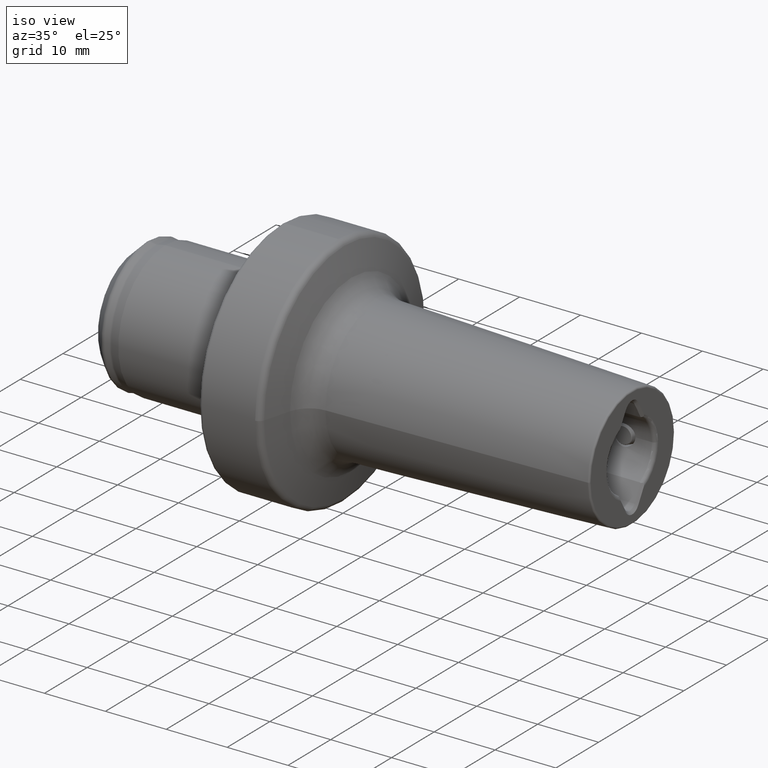
[diagram: clean part render]
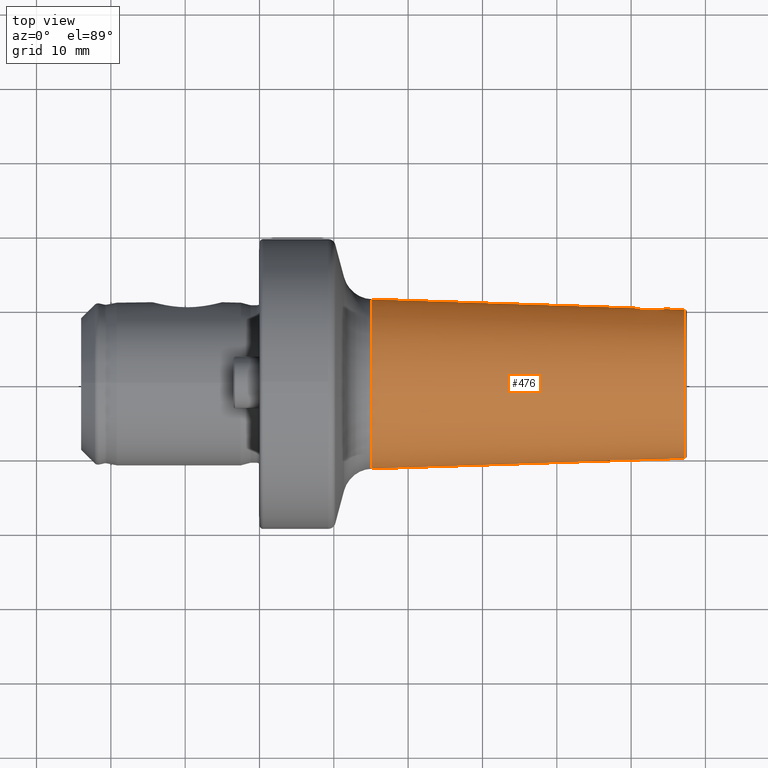
[diagram: tour spotlight — one face highlighted and labeled with its STEP entity id]
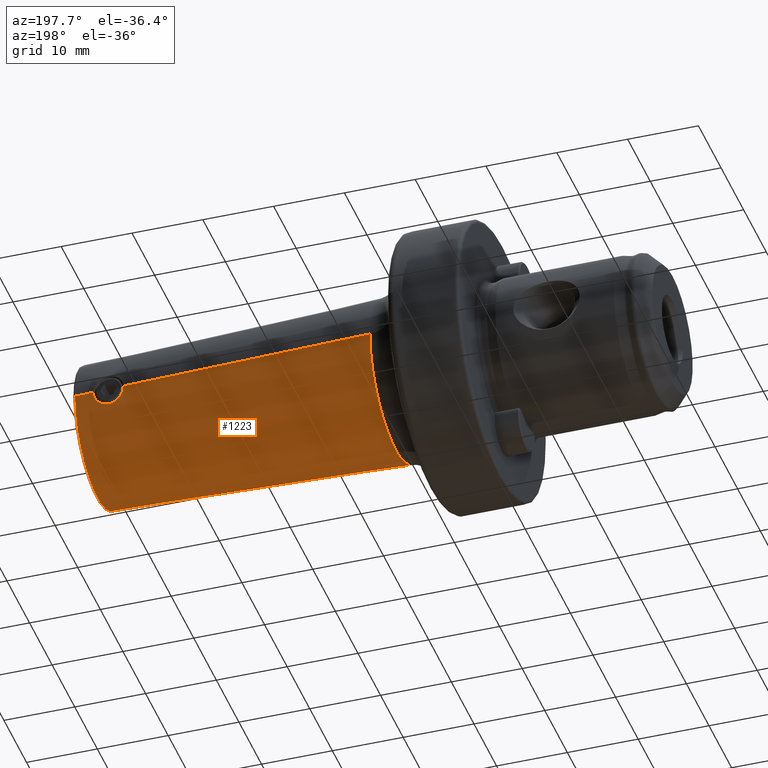
[diagram: tour spotlight — one face highlighted and labeled with its STEP entity id]
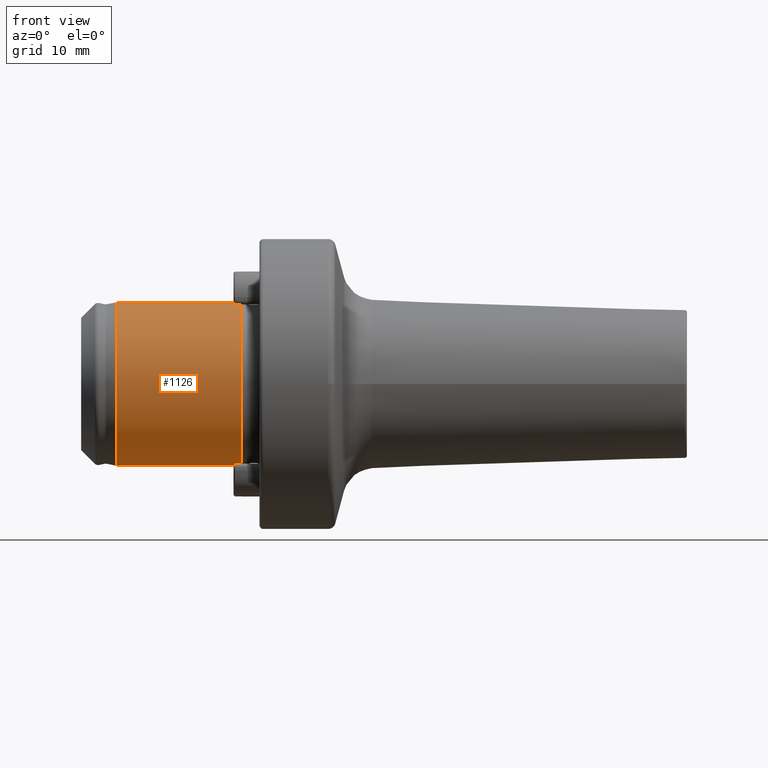
[diagram: tour spotlight — one face highlighted and labeled with its STEP entity id]
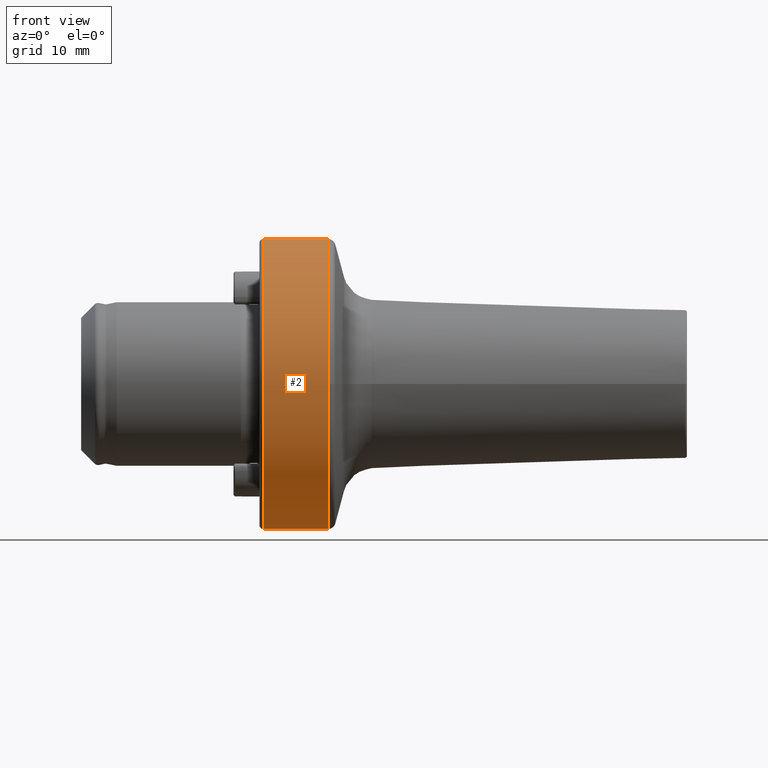
[diagram: tour spotlight — one face highlighted and labeled with its STEP entity id]
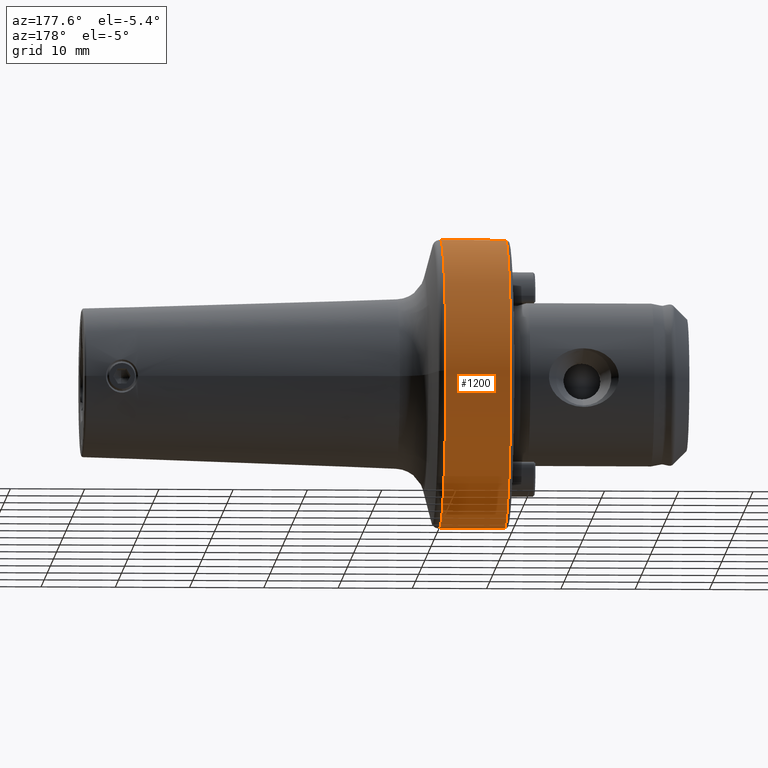
[diagram: tour spotlight — one face highlighted and labeled with its STEP entity id]
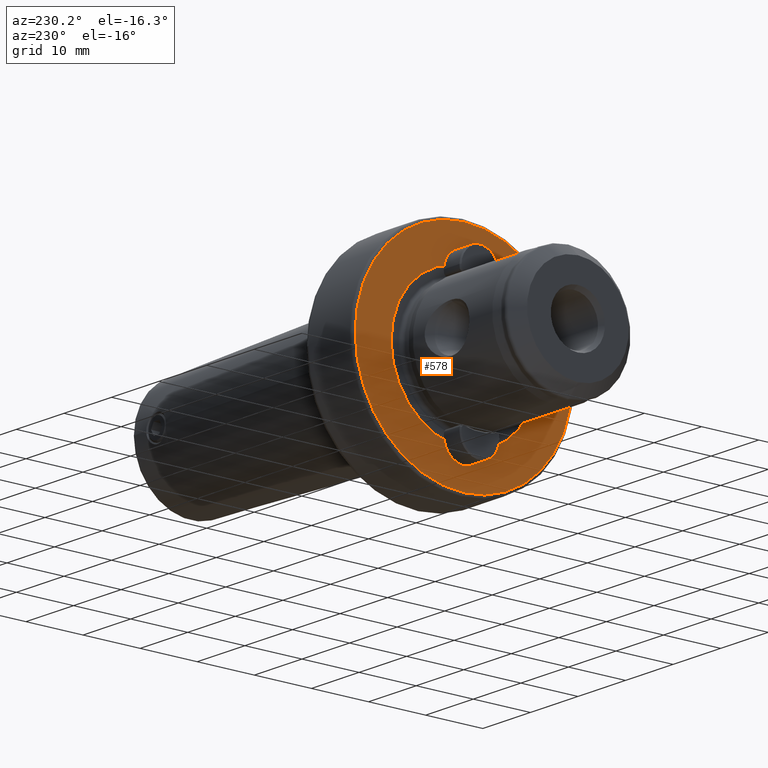
[diagram: tour spotlight — one face highlighted and labeled with its STEP entity id]
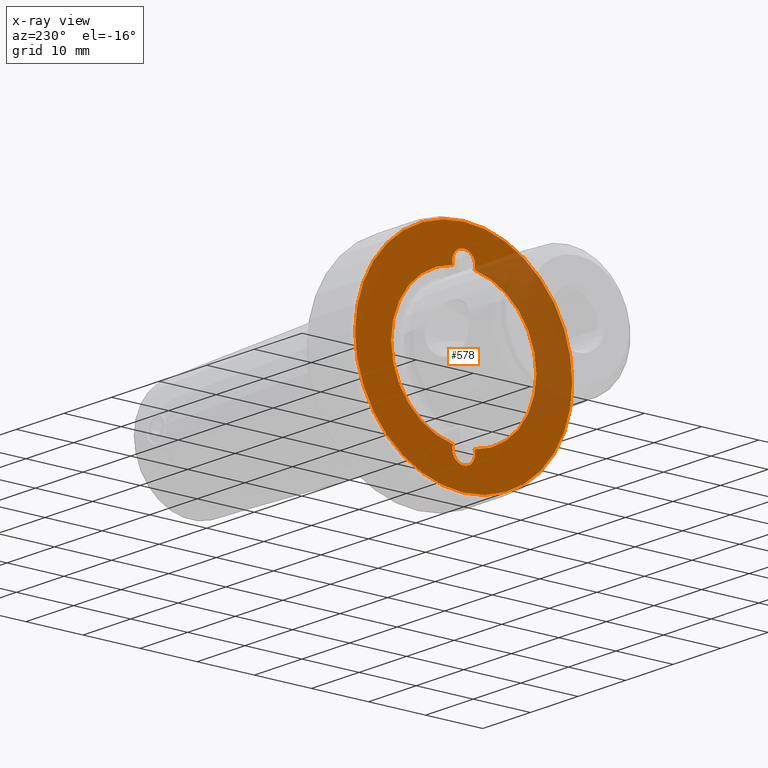
[diagram: x-ray of the same camera — body ghosted, this tour face saturated]
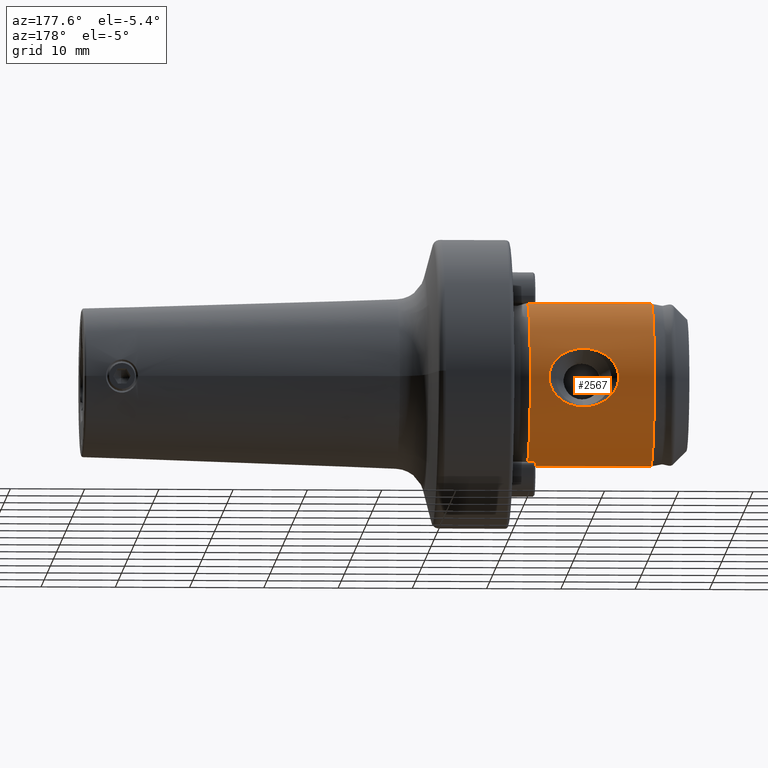
[diagram: tour spotlight — one face highlighted and labeled with its STEP entity id]
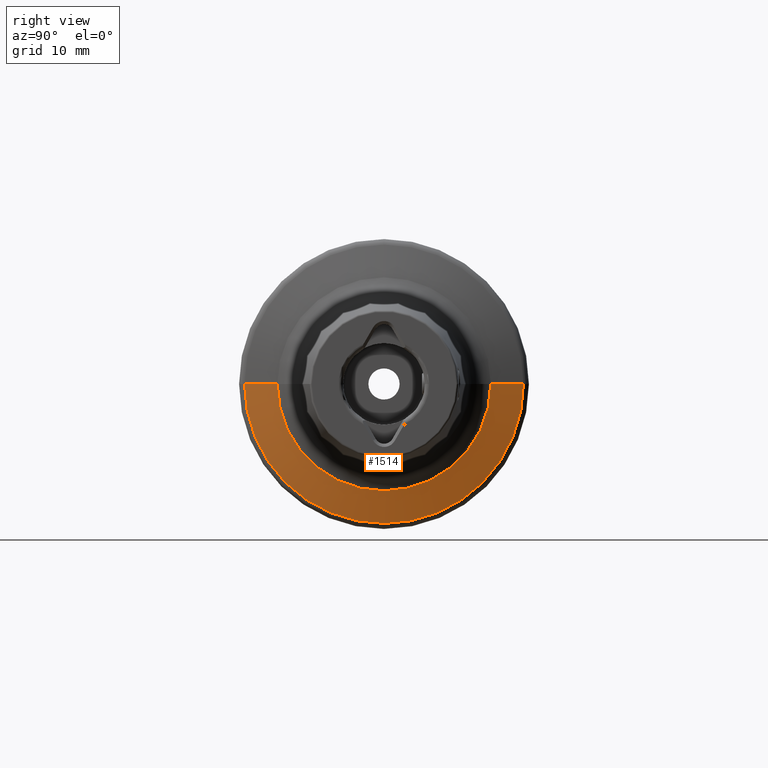
[diagram: tour spotlight — one face highlighted and labeled with its STEP entity id]
A machine part: a face-by-face anatomy tour. The part has 162 B-rep faces; the first image is the clean iso view, then the 8 largest visible faces are spotlighted one at a time (largest first), each with its STEP entity span.

Face 1 — top view, entity #476. In plain terms, the highlighted conical surface has half-angle 1.894 deg.
Definition (entity closure, byte-faithful):
#206 = CARTESIAN_POINT ( 'NONE',  ( 54.61643710638477200, 10.09534963729712600, -1.247319370532852500E-007 ) ) ;
#409 = CARTESIAN_POINT ( 'NONE',  ( 15.10753867116067200, -11.40197817586288100, 0.0000000000000000000 ) ) ;
#476 = ADVANCED_FACE ( 'NONE', ( #2040 ), #1781, .T. ) ;
#743 = ORIENTED_EDGE ( 'NONE', *, *, #1799, .F. ) ;
#746 = ORIENTED_EDGE ( 'NONE', *, *, #1792, .T. ) ;
#753 = B_SPLINE_CURVE_WITH_KNOTS ( 'NONE', 3,
 ( #3699, #3802, #3727, #3692, #3666, #3659, #3646, #3638 ),
 .UNSPECIFIED., .F., .F.,
 ( 4, 2, 2, 4 ),
 ( 0.3809750944990484800, 0.4109104550175490800, 0.4408458155360497300, 0.5007165365730504900 ),
 .UNSPECIFIED. ) ;
#808 = ORIENTED_EDGE ( 'NONE', *, *, #1684, .T. ) ;
#818 = ORIENTED_EDGE ( 'NONE', *, *, #1751, .T. ) ;
#863 = ORIENTED_EDGE ( 'NONE', *, *, #1645, .T. ) ;
#977 = ORIENTED_EDGE ( 'NONE', *, *, #1526, .T. ) ;
#1031 = ORIENTED_EDGE ( 'NONE', *, *, #1261, .F. ) ;
#1065 = VERTEX_POINT ( 'NONE', #409 ) ;
#1121 = AXIS2_PLACEMENT_3D ( 'NONE', #3902, #3909, #3891 ) ;
#1151 = CARTESIAN_POINT ( 'NONE',  ( 54.03191933996500000, 9.996236558941403100, 1.543468595921399600 ) ) ;
#1261 = EDGE_CURVE ( 'NONE', #2658, #4281, #4783, .T. ) ;
#1526 = EDGE_CURVE ( 'NONE', #2658, #4256, #3955, .T. ) ;
#1645 = EDGE_CURVE ( 'NONE', #4256, #5015, #753, .T. ) ;
#1684 = EDGE_CURVE ( 'NONE', #4439, #2800, #3415, .T. ) ;
#1751 = EDGE_CURVE ( 'NONE', #5015, #4439, #4832, .T. ) ;
#1781 = CONICAL_SURFACE ( 'NONE', #3908, 10.00959348489724700, 0.03305935405263969000 ) ;
#1792 = EDGE_CURVE ( 'NONE', #2800, #1065, #3035, .T. ) ;
#1799 = EDGE_CURVE ( 'NONE', #4281, #1065, #2895, .T. ) ;
#2040 = FACE_OUTER_BOUND ( 'NONE', #4074, .T. ) ;
#2160 = CARTESIAN_POINT ( 'NONE',  ( 57.20991599975158000, -10.00959348489724500, 0.0000000000000000000 ) ) ;
#2186 = DIRECTION ( 'NONE',  ( 0.0000000000000000000, -1.000000000000000000, 0.0000000000000000000 ) ) ;
#2192 = DIRECTION ( 'NONE',  ( 1.000000000000000000, 1.936199993903306300E-017, -0.0000000000000000000 ) ) ;
#2208 = CARTESIAN_POINT ( 'NONE',  ( 15.10753867116067200, 9.139206423123587400E-016, 0.0000000000000000000 ) ) ;
#2334 = DIRECTION ( 'NONE',  ( -0.9994535893228343500, -0.03305333250525845800, 0.0000000000000000000 ) ) ;
#2490 = CARTESIAN_POINT ( 'NONE',  ( 57.20991599975158000, 10.00959348489724800, 1.311080634953203500E-015 ) ) ;
#2507 = CARTESIAN_POINT ( 'NONE',  ( 50.31346865582622000, 10.23766237202335500, 6.460838890346779800E-008 ) ) ;
#2525 = CARTESIAN_POINT ( 'NONE',  ( 50.31359408052028900, 10.23766452586071000, 0.2231996039214361700 ) ) ;
#2539 = CARTESIAN_POINT ( 'NONE',  ( 50.34565987477830600, 10.22915769003706100, 0.4454251340449829600 ) ) ;
#2592 = CARTESIAN_POINT ( 'NONE',  ( 50.47267169245495200, 10.19732918184337000, 0.8732519263942071200 ) ) ;
#2598 = CARTESIAN_POINT ( 'NONE',  ( 50.56887988994124300, 10.17340487383569100, 1.083241512282660000 ) ) ;
#2609 = CARTESIAN_POINT ( 'NONE',  ( 50.80652419783688600, 10.11949843427395200, 1.451414647231270600 ) ) ;
#2615 = CARTESIAN_POINT ( 'NONE',  ( 50.95198252944116700, 10.08891972285692500, 1.616117395535669400 ) ) ;
#2631 = CARTESIAN_POINT ( 'NONE',  ( 51.28335854424871300, 10.02926422692522100, 1.894251293613127700 ) ) ;
#2635 = CARTESIAN_POINT ( 'NONE',  ( 51.46692711114793200, 10.00081043651569800, 2.005394933224465200 ) ) ;
#2647 = CARTESIAN_POINT ( 'NONE',  ( 51.76910080073992800, 9.964287910108781800, 2.131045879834805300 ) ) ;
#2652 = CARTESIAN_POINT ( 'NONE',  ( 51.87435548453445500, 9.953123652321602700, 2.166020966127949700 ) ) ;
#2658 = VERTEX_POINT ( 'NONE', #2490 ) ;
#2667 = CARTESIAN_POINT ( 'NONE',  ( 52.08309379041561000, 9.934636952174322700, 2.217818634750417400 ) ) ;
#2671 = CARTESIAN_POINT ( 'NONE',  ( 52.18813892200530100, 9.927126814455437700, 2.235291902131560700 ) ) ;
#2681 = CARTESIAN_POINT ( 'NONE',  ( 52.50530225272158400, 9.910194565634698800, 2.262602911161806200 ) ) ;
#2692 = CARTESIAN_POINT ( 'NONE',  ( 52.72123938572403300, 9.906445061784841900, 2.247321544911318600 ) ) ;
#2698 = CARTESIAN_POINT ( 'NONE',  ( 53.03287534597820500, 9.912048985219042800, 2.174482252729469200 ) ) ;
#2704 = CARTESIAN_POINT ( 'NONE',  ( 53.13534310261462000, 9.915735824259575900, 2.141872982554367400 ) ) ;
#2710 = CARTESIAN_POINT ( 'NONE',  ( 53.33745682232427800, 9.926253569418291200, 2.059941313840694600 ) ) ;
#2723 = CARTESIAN_POINT ( 'NONE',  ( 53.43738410535593900, 9.933091375062309300, 2.010471833227997600 ) ) ;
#2731 = CARTESIAN_POINT ( 'NONE',  ( 53.71829698317171900, 9.956319930659479000, 1.844219435066389200 ) ) ;
#2757 = DIRECTION ( 'NONE',  ( 0.0000000000000000000, -1.000000000000000000, 0.0000000000000000000 ) ) ;
#2766 = CARTESIAN_POINT ( 'NONE',  ( 54.03191933996500000, 9.996236558941403100, 1.543468595921399600 ) ) ;
#2770 = CARTESIAN_POINT ( 'NONE',  ( 57.20991599975158000, 1.729106869581682600E-015, 0.0000000000000000000 ) ) ;
#2795 = CARTESIAN_POINT ( 'NONE',  ( 53.88526321965287000, 9.975869577983058200, 1.707158687679114700 ) ) ;
#2800 = VERTEX_POINT ( 'NONE', #3125 ) ;
#2810 = DIRECTION ( 'NONE',  ( -1.000000000000000000, -1.936199993903306300E-017, 0.0000000000000000000 ) ) ;
#2839 = VECTOR ( 'NONE', #2334, 1000.000000000000000 ) ;
#2880 = CARTESIAN_POINT ( 'NONE',  ( 57.20991599975158000, -10.00959348489724500, 0.0000000000000000000 ) ) ;
#2895 = LINE ( 'NONE', #2160, #2839 ) ;
#3035 = CIRCLE ( 'NONE', #3502, 11.40197817586288000 ) ;
#3125 = CARTESIAN_POINT ( 'NONE',  ( 15.10753867116067200, 11.40197817586288100, 1.396339607701845400E-015 ) ) ;
#3286 = VECTOR ( 'NONE', #3338, 1000.000000000000000 ) ;
#3338 = DIRECTION ( 'NONE',  ( -0.9994535893228343500, 0.03305333250525841600, 4.047865785371791100E-018 ) ) ;
#3349 = CARTESIAN_POINT ( 'NONE',  ( 57.20991599975158000, 10.00959348489724800, 1.225821662204561300E-015 ) ) ;
#3415 = LINE ( 'NONE', #3349, #3286 ) ;
#3502 = AXIS2_PLACEMENT_3D ( 'NONE', #2208, #2192, #2186 ) ;
#3638 = CARTESIAN_POINT ( 'NONE',  ( 54.03191933996500000, 9.996236558941403100, 1.543468595921399600 ) ) ;
#3646 = CARTESIAN_POINT ( 'NONE',  ( 54.21672009404241500, 10.02190013999127200, 1.337208362054496300 ) ) ;
#3659 = CARTESIAN_POINT ( 'NONE',  ( 54.36067632359698400, 10.04744719795456800, 1.099199125698182600 ) ) ;
#3666 = CARTESIAN_POINT ( 'NONE',  ( 54.51279383237172700, 10.07560205412691400, 0.6970505392443192600 ) ) ;
#3692 = CARTESIAN_POINT ( 'NONE',  ( 54.55202311675653000, 10.08302060168680600, 0.5579543544587976000 ) ) ;
#3699 = CARTESIAN_POINT ( 'NONE',  ( 54.61643710638477200, 10.09534963729712600, -1.247319370532852500E-007 ) ) ;
#3727 = CARTESIAN_POINT ( 'NONE',  ( 54.60354215335468100, 10.09283940962736800, 0.2807217708941255900 ) ) ;
#3802 = CARTESIAN_POINT ( 'NONE',  ( 54.61643875647936100, 10.09536341698248500, 0.1409206740365080100 ) ) ;
#3891 = DIRECTION ( 'NONE',  ( 0.0000000000000000000, 1.000000000000000000, 0.0000000000000000000 ) ) ;
#3902 = CARTESIAN_POINT ( 'NONE',  ( 57.20991599975158000, 1.729106869581682600E-015, 0.0000000000000000000 ) ) ;
#3908 = AXIS2_PLACEMENT_3D ( 'NONE', #2770, #2810, #2757 ) ;
#3909 = DIRECTION ( 'NONE',  ( 1.000000000000000000, 1.936199993903306300E-017, -0.0000000000000000000 ) ) ;
#3955 = LINE ( 'NONE', #5045, #3959 ) ;
#3959 = VECTOR ( 'NONE', #5019, 1000.000000000000000 ) ;
#4074 = EDGE_LOOP ( 'NONE', ( #1031, #977, #863, #818, #808, #746, #743 ) ) ;
#4172 = CARTESIAN_POINT ( 'NONE',  ( 50.31346865582622000, 10.23766237202335500, 6.460838890346779800E-008 ) ) ;
#4256 = VERTEX_POINT ( 'NONE', #206 ) ;
#4281 = VERTEX_POINT ( 'NONE', #2880 ) ;
#4439 = VERTEX_POINT ( 'NONE', #4172 ) ;
#4783 = CIRCLE ( 'NONE', #1121, 10.00959348489724700 ) ;
#4832 = B_SPLINE_CURVE_WITH_KNOTS ( 'NONE', 3,
 ( #2766, #2795, #2731, #2723, #2710, #2704, #2698, #2692, #2681, #2671, #2667, #2652, #2647, #2635, #2631, #2615, #2609, #2598, #2592, #2539, #2525, #2507 ),
 .UNSPECIFIED., .F., .F.,
 ( 4, 2, 2, 2, 2, 2, 2, 2, 2, 2, 4 ),
 ( 0.5007165365730504900, 0.5482300108390549800, 0.5719867479720571700, 0.5957434851050594800, 0.6432569593710638600, 0.6670136965040661700, 0.6907704336370683600, 0.7382839079030728600, 0.7857973821690773500, 0.8333108564350817400, 0.8808243307010862300 ),
 .UNSPECIFIED. ) ;
#5015 = VERTEX_POINT ( 'NONE', #1151 ) ;
#5019 = DIRECTION ( 'NONE',  ( -0.9994535893228343500, 0.03305333250525841600, 4.047865785371791100E-018 ) ) ;
#5045 = CARTESIAN_POINT ( 'NONE',  ( 57.20991599975158000, 10.00959348489724800, 1.225821662204561300E-015 ) ) ;

Face 2 — auxiliary view, entity #1223. In plain terms, the highlighted conical surface has half-angle 1.894 deg.
Definition (entity closure, byte-faithful):
#12 = CARTESIAN_POINT ( 'NONE',  ( 53.97547661939655200, 9.987068777176377300, -1.619564742408697900 ) ) ;
#21 = CARTESIAN_POINT ( 'NONE',  ( 53.64218473908121600, 9.949111803561711700, -1.898116619410088900 ) ) ;
#48 = CARTESIAN_POINT ( 'NONE',  ( 53.45740436170660800, 9.932848610565972800, -2.009308330043256600 ) ) ;
#66 = CARTESIAN_POINT ( 'NONE',  ( 53.15303213981928800, 9.916721206747045200, -2.134543123071404900 ) ) ;
#78 = CARTESIAN_POINT ( 'NONE',  ( 53.04768064177537200, 9.912737988689714900, -2.169063787334344400 ) ) ;
#110 = CARTESIAN_POINT ( 'NONE',  ( 52.83828055914344900, 9.908541279657963900, -2.220047811389923800 ) ) ;
#129 = CARTESIAN_POINT ( 'NONE',  ( 52.73290714838518800, 9.908260625920545900, -2.237046745871396500 ) ) ;
#160 = CARTESIAN_POINT ( 'NONE',  ( 52.41476680778337300, 9.913265206273568000, -2.262570096729799900 ) ) ;
#167 = FACE_OUTER_BOUND ( 'NONE', #3701, .T. ) ;
#180 = CARTESIAN_POINT ( 'NONE',  ( 52.19942700785286100, 9.924564197611518400, -2.245538965718340700 ) ) ;
#197 = CARTESIAN_POINT ( 'NONE',  ( 51.88874328180474300, 9.951539064760437400, -2.171044824301323800 ) ) ;
#206 = CARTESIAN_POINT ( 'NONE',  ( 54.61643710638477200, 10.09534963729712600, -1.247319370532852500E-007 ) ) ;
#211 = CARTESIAN_POINT ( 'NONE',  ( 51.78655883741129900, 9.962216720343995700, -2.137948484778380300 ) ) ;
#232 = CARTESIAN_POINT ( 'NONE',  ( 51.58494354386959900, 9.986449468483220600, -2.055074435484362600 ) ) ;
#252 = CARTESIAN_POINT ( 'NONE',  ( 51.48582377190312800, 9.999953562102136900, -2.005415799037841400 ) ) ;
#269 = CARTESIAN_POINT ( 'NONE',  ( 51.20716952147149200, 10.04173243136610000, -1.839078650444668600 ) ) ;
#301 = DIRECTION ( 'NONE',  ( 0.0000000000000000000, -1.000000000000000000, 0.0000000000000000000 ) ) ;
#314 = CARTESIAN_POINT ( 'NONE',  ( 50.89463629603263000, 10.10190169389867200, -1.538920039339643200 ) ) ;
#320 = DIRECTION ( 'NONE',  ( 1.000000000000000000, 1.936199993903306300E-017, -0.0000000000000000000 ) ) ;
#332 = CARTESIAN_POINT ( 'NONE',  ( 50.70996647231506700, 10.13945267061894600, -1.332977369555135900 ) ) ;
#345 = CARTESIAN_POINT ( 'NONE',  ( 50.56740444698654400, 10.17384706303384300, -1.096691110636313300 ) ) ;
#363 = CARTESIAN_POINT ( 'NONE',  ( 50.41620551977251100, 10.21144668934542200, -0.6961603037788137700 ) ) ;
#381 = CARTESIAN_POINT ( 'NONE',  ( 15.10753867116067200, 9.139206423123587400E-016, 0.0000000000000000000 ) ) ;
#393 = CARTESIAN_POINT ( 'NONE',  ( 51.04106871597766600, 10.07212612372178000, -1.702219482482805000 ) ) ;
#402 = CARTESIAN_POINT ( 'NONE',  ( 50.89463629603263000, 10.10190169389867200, -1.538920039339643200 ) ) ;
#409 = CARTESIAN_POINT ( 'NONE',  ( 15.10753867116067200, -11.40197817586288100, 0.0000000000000000000 ) ) ;
#420 = CARTESIAN_POINT ( 'NONE',  ( 50.37718471242325100, 10.22131676603402400, -0.5573177349273640300 ) ) ;
#439 = CARTESIAN_POINT ( 'NONE',  ( 50.32606769766913100, 10.23434684382120900, -0.2804883138939665000 ) ) ;
#575 = CARTESIAN_POINT ( 'NONE',  ( 50.31346865582622000, 10.23766237202335500, 6.460838890346779800E-008 ) ) ;
#591 = CARTESIAN_POINT ( 'NONE',  ( 50.31333797605484600, 10.23767299714178600, -0.1407986687144350500 ) ) ;
#638 = ORIENTED_EDGE ( 'NONE', *, *, #4223, .T. ) ;
#920 = CARTESIAN_POINT ( 'NONE',  ( 54.61643710638477200, 10.09534963729712600, -1.247319370532852500E-007 ) ) ;
#921 = ORIENTED_EDGE ( 'NONE', *, *, #1684, .F. ) ;
#978 = DIRECTION ( 'NONE',  ( 0.0000000000000000000, 1.000000000000000000, 0.0000000000000000000 ) ) ;
#1019 = CARTESIAN_POINT ( 'NONE',  ( 54.61652593557361300, 10.09536053174539200, -0.2237599226008714100 ) ) ;
#1065 = VERTEX_POINT ( 'NONE', #409 ) ;
#1096 = DIRECTION ( 'NONE',  ( 1.000000000000000000, 1.936199993903306300E-017, -0.0000000000000000000 ) ) ;
#1115 = CARTESIAN_POINT ( 'NONE',  ( 57.20991599975158000, 1.729106869581682600E-015, 0.0000000000000000000 ) ) ;
#1186 = VERTEX_POINT ( 'NONE', #4996 ) ;
#1223 = ADVANCED_FACE ( 'NONE', ( #167 ), #4528, .T. ) ;
#1443 = AXIS2_PLACEMENT_3D ( 'NONE', #4257, #4338, #4401 ) ;
#1446 = ORIENTED_EDGE ( 'NONE', *, *, #4808, .T. ) ;
#1526 = EDGE_CURVE ( 'NONE', #2658, #4256, #3955, .T. ) ;
#1669 = ORIENTED_EDGE ( 'NONE', *, *, #4734, .F. ) ;
#1684 = EDGE_CURVE ( 'NONE', #4439, #2800, #3415, .T. ) ;
#1798 = B_SPLINE_CURVE_WITH_KNOTS ( 'NONE', 3,
 ( #402, #393, #269, #252, #232, #211, #197, #180, #160, #129, #110, #78, #66, #48, #21, #12, #2941, #3407, #3318, #2352, #1019, #920 ),
 .UNSPECIFIED., .F., .F.,
 ( 4, 2, 2, 2, 2, 2, 2, 2, 2, 2, 4 ),
 ( 0.0007141006952826041200, 0.04824672492075503900, 0.07201303703349060100, 0.09577934914622617000, 0.1433119733716987600, 0.1670782854844342900, 0.1908445975971698200, 0.2383772218226394600, 0.2859098460481091500, 0.3334424702735787600, 0.3809750944990484300 ),
 .UNSPECIFIED. ) ;
#1799 = EDGE_CURVE ( 'NONE', #4281, #1065, #2895, .T. ) ;
#1994 = ORIENTED_EDGE ( 'NONE', *, *, #1526, .F. ) ;
#2160 = CARTESIAN_POINT ( 'NONE',  ( 57.20991599975158000, -10.00959348489724500, 0.0000000000000000000 ) ) ;
#2334 = DIRECTION ( 'NONE',  ( -0.9994535893228343500, -0.03305333250525845800, 0.0000000000000000000 ) ) ;
#2352 = CARTESIAN_POINT ( 'NONE',  ( 54.58449662705228900, 10.08882495988249200, -0.4464187181763308900 ) ) ;
#2365 = CIRCLE ( 'NONE', #3558, 11.40197817586288000 ) ;
#2490 = CARTESIAN_POINT ( 'NONE',  ( 57.20991599975158000, 10.00959348489724800, 1.311080634953203500E-015 ) ) ;
#2554 = CIRCLE ( 'NONE', #4438, 10.00959348489724700 ) ;
#2658 = VERTEX_POINT ( 'NONE', #2490 ) ;
#2800 = VERTEX_POINT ( 'NONE', #3125 ) ;
#2839 = VECTOR ( 'NONE', #2334, 1000.000000000000000 ) ;
#2880 = CARTESIAN_POINT ( 'NONE',  ( 57.20991599975158000, -10.00959348489724500, 0.0000000000000000000 ) ) ;
#2895 = LINE ( 'NONE', #2160, #2839 ) ;
#2941 = CARTESIAN_POINT ( 'NONE',  ( 54.12174598583771300, 10.00829747797820300, -1.454433108790473800 ) ) ;
#3024 = ORIENTED_EDGE ( 'NONE', *, *, #4804, .T. ) ;
#3125 = CARTESIAN_POINT ( 'NONE',  ( 15.10753867116067200, 11.40197817586288100, 1.396339607701845400E-015 ) ) ;
#3286 = VECTOR ( 'NONE', #3338, 1000.000000000000000 ) ;
#3318 = CARTESIAN_POINT ( 'NONE',  ( 54.45729245018245700, 10.06496935131344000, -0.8746633930597375000 ) ) ;
#3338 = DIRECTION ( 'NONE',  ( -0.9994535893228343500, 0.03305333250525841600, 4.047865785371791100E-018 ) ) ;
#3349 = CARTESIAN_POINT ( 'NONE',  ( 57.20991599975158000, 10.00959348489724800, 1.225821662204561300E-015 ) ) ;
#3407 = CARTESIAN_POINT ( 'NONE',  ( 54.36068875678479600, 10.04708627018415100, -1.085221096048812500 ) ) ;
#3415 = LINE ( 'NONE', #3349, #3286 ) ;
#3558 = AXIS2_PLACEMENT_3D ( 'NONE', #381, #320, #301 ) ;
#3701 = EDGE_LOOP ( 'NONE', ( #1994, #1669, #4129, #3024, #921, #638, #1446 ) ) ;
#3702 = B_SPLINE_CURVE_WITH_KNOTS ( 'NONE', 3,
 ( #575, #591, #439, #420, #363, #345, #332, #314 ),
 .UNSPECIFIED., .F., .F.,
 ( 4, 2, 2, 4 ),
 ( 0.8808243307010862300, 0.9107967731996353700, 0.9407692156981843900, 1.000714100695282700 ),
 .UNSPECIFIED. ) ;
#3955 = LINE ( 'NONE', #5045, #3959 ) ;
#3959 = VECTOR ( 'NONE', #5019, 1000.000000000000000 ) ;
#4129 = ORIENTED_EDGE ( 'NONE', *, *, #1799, .T. ) ;
#4172 = CARTESIAN_POINT ( 'NONE',  ( 50.31346865582622000, 10.23766237202335500, 6.460838890346779800E-008 ) ) ;
#4223 = EDGE_CURVE ( 'NONE', #4439, #1186, #3702, .T. ) ;
#4256 = VERTEX_POINT ( 'NONE', #206 ) ;
#4257 = CARTESIAN_POINT ( 'NONE',  ( 57.20991599975158000, 1.729106869581682600E-015, 0.0000000000000000000 ) ) ;
#4281 = VERTEX_POINT ( 'NONE', #2880 ) ;
#4338 = DIRECTION ( 'NONE',  ( -1.000000000000000000, -1.936199993903306300E-017, 0.0000000000000000000 ) ) ;
#4401 = DIRECTION ( 'NONE',  ( 0.0000000000000000000, -1.000000000000000000, 0.0000000000000000000 ) ) ;
#4438 = AXIS2_PLACEMENT_3D ( 'NONE', #1115, #1096, #978 ) ;
#4439 = VERTEX_POINT ( 'NONE', #4172 ) ;
#4528 = CONICAL_SURFACE ( 'NONE', #1443, 10.00959348489724700, 0.03305935405263969000 ) ;
#4734 = EDGE_CURVE ( 'NONE', #4281, #2658, #2554, .T. ) ;
#4804 = EDGE_CURVE ( 'NONE', #1065, #2800, #2365, .T. ) ;
#4808 = EDGE_CURVE ( 'NONE', #1186, #4256, #1798, .T. ) ;
#4996 = CARTESIAN_POINT ( 'NONE',  ( 50.89463629603263000, 10.10190169389867200, -1.538920039339643200 ) ) ;
#5019 = DIRECTION ( 'NONE',  ( -0.9994535893228343500, 0.03305333250525841600, 4.047865785371791100E-018 ) ) ;
#5045 = CARTESIAN_POINT ( 'NONE',  ( 57.20991599975158000, 10.00959348489724800, 1.225821662204561300E-015 ) ) ;

Face 3 — front view, entity #1126. In plain terms, the highlighted cylindrical surface (partial cylindrical patch) has radius 11 mm, axis along (-1, -0, -0).
Definition (entity closure, byte-faithful):
#15 = DIRECTION ( 'NONE',  ( -1.000000000000000000, -0.0000000000000000000, -0.0000000000000000000 ) ) ;
#52 = CARTESIAN_POINT ( 'NONE',  ( -19.20000000000000300, 0.0000000000000000000, 0.0000000000000000000 ) ) ;
#149 = DIRECTION ( 'NONE',  ( -1.000000000000000000, -0.0000000000000000000, -0.0000000000000000000 ) ) ;
#163 = ORIENTED_EDGE ( 'NONE', *, *, #4260, .F. ) ;
#168 = ORIENTED_EDGE ( 'NONE', *, *, #2730, .T. ) ;
#173 = ORIENTED_EDGE ( 'NONE', *, *, #2232, .T. ) ;
#194 = ORIENTED_EDGE ( 'NONE', *, *, #2583, .F. ) ;
#203 = CARTESIAN_POINT ( 'NONE',  ( -24.00000000000000000, 0.0000000000000000000, 0.0000000000000000000 ) ) ;
#215 = DIRECTION ( 'NONE',  ( 0.0000000000000000000, 0.0000000000000000000, 1.000000000000000000 ) ) ;
#263 = DIRECTION ( 'NONE',  ( 0.0000000000000000000, 0.0000000000000000000, 1.000000000000000000 ) ) ;
#289 = DIRECTION ( 'NONE',  ( -1.000000000000000000, -0.0000000000000000000, -0.0000000000000000000 ) ) ;
#317 = CARTESIAN_POINT ( 'NONE',  ( -2.500000000000002200, 0.0000000000000000000, 0.0000000000000000000 ) ) ;
#359 = CYLINDRICAL_SURFACE ( 'NONE', #1703, 10.99999999999999800 ) ;
#487 = FACE_OUTER_BOUND ( 'NONE', #1560, .T. ) ;
#752 = VERTEX_POINT ( 'NONE', #1237 ) ;
#802 = VECTOR ( 'NONE', #2799, 1000.000000000000000 ) ;
#852 = LINE ( 'NONE', #2697, #802 ) ;
#1081 = VECTOR ( 'NONE', #2091, 1000.000000000000000 ) ;
#1126 = ADVANCED_FACE ( 'NONE', ( #487 ), #359, .T. ) ;
#1134 = LINE ( 'NONE', #2110, #1081 ) ;
#1237 = CARTESIAN_POINT ( 'NONE',  ( -2.500000000000002200, 0.0000000000000000000, 10.99999999999999800 ) ) ;
#1560 = EDGE_LOOP ( 'NONE', ( #194, #173, #168, #163 ) ) ;
#1646 = VERTEX_POINT ( 'NONE', #3756 ) ;
#1703 = AXIS2_PLACEMENT_3D ( 'NONE', #203, #149, #215 ) ;
#1732 = VERTEX_POINT ( 'NONE', #3060 ) ;
#2004 = CARTESIAN_POINT ( 'NONE',  ( -2.500000000000002200, 1.347111479062088200E-015, -10.99999999999999800 ) ) ;
#2006 = CIRCLE ( 'NONE', #2576, 10.99999999999999800 ) ;
#2091 = DIRECTION ( 'NONE',  ( -1.000000000000000000, -0.0000000000000000000, -0.0000000000000000000 ) ) ;
#2110 = CARTESIAN_POINT ( 'NONE',  ( -24.00000000000000000, 1.347111479062088200E-015, -10.99999999999999800 ) ) ;
#2232 = EDGE_CURVE ( 'NONE', #3982, #752, #2006, .T. ) ;
#2576 = AXIS2_PLACEMENT_3D ( 'NONE', #317, #289, #263 ) ;
#2583 = EDGE_CURVE ( 'NONE', #3982, #1646, #1134, .T. ) ;
#2697 = CARTESIAN_POINT ( 'NONE',  ( -24.00000000000000000, 0.0000000000000000000, 10.99999999999999800 ) ) ;
#2730 = EDGE_CURVE ( 'NONE', #752, #1732, #852, .T. ) ;
#2799 = DIRECTION ( 'NONE',  ( -1.000000000000000000, -0.0000000000000000000, -0.0000000000000000000 ) ) ;
#3060 = CARTESIAN_POINT ( 'NONE',  ( -19.20000000000000300, 1.347111479062088200E-015, 10.99999999999999800 ) ) ;
#3391 = CIRCLE ( 'NONE', #4759, 10.99999999999999800 ) ;
#3756 = CARTESIAN_POINT ( 'NONE',  ( -19.20000000000000300, 0.0000000000000000000, -10.99999999999999800 ) ) ;
#3982 = VERTEX_POINT ( 'NONE', #2004 ) ;
#4260 = EDGE_CURVE ( 'NONE', #1646, #1732, #3391, .T. ) ;
#4759 = AXIS2_PLACEMENT_3D ( 'NONE', #52, #15, #5006 ) ;
#5006 = DIRECTION ( 'NONE',  ( 0.0000000000000000000, 0.0000000000000000000, 1.000000000000000000 ) ) ;

Face 4 — front view, entity #2. In plain terms, the highlighted cylindrical surface (partial cylindrical patch) has radius 19.5 mm, axis along (-1, -0, -0).
Definition (entity closure, byte-faithful):
#2 = ADVANCED_FACE ( 'NONE', ( #3992 ), #3875, .T. ) ;
#63 = DIRECTION ( 'NONE',  ( 0.0000000000000000000, 1.000000000000000000, 0.0000000000000000000 ) ) ;
#68 = DIRECTION ( 'NONE',  ( -1.000000000000000000, -9.680999969516531400E-018, 0.0000000000000000000 ) ) ;
#72 = CARTESIAN_POINT ( 'NONE',  ( 9.232673012021040300, 0.0000000000000000000, 0.0000000000000000000 ) ) ;
#95 = CARTESIAN_POINT ( 'NONE',  ( 0.5000000000000004400, 2.388061258337338900E-015, -19.50000000000000000 ) ) ;
#304 = AXIS2_PLACEMENT_3D ( 'NONE', #995, #1020, #1028 ) ;
#419 = CIRCLE ( 'NONE', #1869, 19.49999999999999600 ) ;
#472 = EDGE_CURVE ( 'NONE', #1174, #1245, #1917, .T. ) ;
#995 = CARTESIAN_POINT ( 'NONE',  ( 9.232673012021040300, 0.0000000000000000000, 0.0000000000000000000 ) ) ;
#1020 = DIRECTION ( 'NONE',  ( -1.000000000000000000, -9.680999969516531400E-018, 0.0000000000000000000 ) ) ;
#1028 = DIRECTION ( 'NONE',  ( 0.0000000000000000000, 1.000000000000000000, 0.0000000000000000000 ) ) ;
#1143 = EDGE_CURVE ( 'NONE', #4736, #1208, #419, .T. ) ;
#1174 = VERTEX_POINT ( 'NONE', #95 ) ;
#1208 = VERTEX_POINT ( 'NONE', #4428 ) ;
#1245 = VERTEX_POINT ( 'NONE', #4118 ) ;
#1268 = CARTESIAN_POINT ( 'NONE',  ( -24.00000000000000000, 2.388061258337338500E-015, -19.49999999999999600 ) ) ;
#1329 = AXIS2_PLACEMENT_3D ( 'NONE', #5033, #1585, #3953 ) ;
#1330 = CARTESIAN_POINT ( 'NONE',  ( 9.232673012021040300, 2.388061258337338500E-015, -19.49999999999999600 ) ) ;
#1403 = DIRECTION ( 'NONE',  ( -1.000000000000000000, -0.0000000000000000000, -0.0000000000000000000 ) ) ;
#1585 = DIRECTION ( 'NONE',  ( -1.000000000000000000, -0.0000000000000000000, -0.0000000000000000000 ) ) ;
#1869 = AXIS2_PLACEMENT_3D ( 'NONE', #72, #68, #63 ) ;
#1907 = DIRECTION ( 'NONE',  ( -1.000000000000000000, -0.0000000000000000000, -0.0000000000000000000 ) ) ;
#1917 = CIRCLE ( 'NONE', #3976, 19.50000000000000000 ) ;
#2302 = CARTESIAN_POINT ( 'NONE',  ( -24.00000000000000000, 0.0000000000000000000, 19.49999999999999600 ) ) ;
#2342 = CARTESIAN_POINT ( 'NONE',  ( 9.232673012021040300, 0.0000000000000000000, 19.49999999999999600 ) ) ;
#2732 = DIRECTION ( 'NONE',  ( 0.0000000000000000000, 0.0000000000000000000, 1.000000000000000000 ) ) ;
#2743 = DIRECTION ( 'NONE',  ( -1.000000000000000000, -0.0000000000000000000, -0.0000000000000000000 ) ) ;
#2750 = CARTESIAN_POINT ( 'NONE',  ( 0.5000000000000004400, 0.0000000000000000000, 0.0000000000000000000 ) ) ;
#3241 = EDGE_CURVE ( 'NONE', #1208, #4552, #4926, .T. ) ;
#3384 = VECTOR ( 'NONE', #1907, 1000.000000000000000 ) ;
#3395 = LINE ( 'NONE', #2302, #3384 ) ;
#3555 = ORIENTED_EDGE ( 'NONE', *, *, #472, .F. ) ;
#3630 = ORIENTED_EDGE ( 'NONE', *, *, #4293, .T. ) ;
#3696 = ORIENTED_EDGE ( 'NONE', *, *, #3241, .T. ) ;
#3705 = VECTOR ( 'NONE', #1403, 1000.000000000000000 ) ;
#3720 = LINE ( 'NONE', #1268, #3705 ) ;
#3799 = ORIENTED_EDGE ( 'NONE', *, *, #1143, .T. ) ;
#3852 = ORIENTED_EDGE ( 'NONE', *, *, #4047, .F. ) ;
#3875 = CYLINDRICAL_SURFACE ( 'NONE', #1329, 19.49999999999999600 ) ;
#3953 = DIRECTION ( 'NONE',  ( 0.0000000000000000000, 0.0000000000000000000, 1.000000000000000000 ) ) ;
#3976 = AXIS2_PLACEMENT_3D ( 'NONE', #2750, #2743, #2732 ) ;
#3992 = FACE_OUTER_BOUND ( 'NONE', #5027, .T. ) ;
#4047 = EDGE_CURVE ( 'NONE', #4736, #1174, #3720, .T. ) ;
#4118 = CARTESIAN_POINT ( 'NONE',  ( 0.5000000000000004400, 0.0000000000000000000, 19.50000000000000000 ) ) ;
#4293 = EDGE_CURVE ( 'NONE', #4552, #1245, #3395, .T. ) ;
#4428 = CARTESIAN_POINT ( 'NONE',  ( 9.232673012021040300, -19.49999999999999600, 2.388061258337338900E-015 ) ) ;
#4552 = VERTEX_POINT ( 'NONE', #2342 ) ;
#4736 = VERTEX_POINT ( 'NONE', #1330 ) ;
#4926 = CIRCLE ( 'NONE', #304, 19.49999999999999600 ) ;
#5027 = EDGE_LOOP ( 'NONE', ( #3852, #3799, #3696, #3630, #3555 ) ) ;
#5033 = CARTESIAN_POINT ( 'NONE',  ( -24.00000000000000000, 0.0000000000000000000, 0.0000000000000000000 ) ) ;

Face 5 — auxiliary view, entity #1200. In plain terms, the highlighted cylindrical surface (partial cylindrical patch) has radius 19.5 mm, axis along (-1, -0, -0).
Definition (entity closure, byte-faithful):
#95 = CARTESIAN_POINT ( 'NONE',  ( 0.5000000000000004400, 2.388061258337338900E-015, -19.50000000000000000 ) ) ;
#113 = AXIS2_PLACEMENT_3D ( 'NONE', #4023, #4010, #3995 ) ;
#145 = DIRECTION ( 'NONE',  ( 0.0000000000000000000, 0.0000000000000000000, 1.000000000000000000 ) ) ;
#166 = DIRECTION ( 'NONE',  ( -1.000000000000000000, -0.0000000000000000000, -0.0000000000000000000 ) ) ;
#172 = CYLINDRICAL_SURFACE ( 'NONE', #1305, 19.49999999999999600 ) ;
#184 = CARTESIAN_POINT ( 'NONE',  ( 0.5000000000000004400, 0.0000000000000000000, 0.0000000000000000000 ) ) ;
#480 = FACE_OUTER_BOUND ( 'NONE', #2957, .T. ) ;
#781 = CARTESIAN_POINT ( 'NONE',  ( 9.232673012021040300, 19.49999999999999600, 0.0000000000000000000 ) ) ;
#1174 = VERTEX_POINT ( 'NONE', #95 ) ;
#1200 = ADVANCED_FACE ( 'NONE', ( #480 ), #172, .T. ) ;
#1245 = VERTEX_POINT ( 'NONE', #4118 ) ;
#1268 = CARTESIAN_POINT ( 'NONE',  ( -24.00000000000000000, 2.388061258337338500E-015, -19.49999999999999600 ) ) ;
#1305 = AXIS2_PLACEMENT_3D ( 'NONE', #4701, #4816, #2852 ) ;
#1330 = CARTESIAN_POINT ( 'NONE',  ( 9.232673012021040300, 2.388061258337338500E-015, -19.49999999999999600 ) ) ;
#1403 = DIRECTION ( 'NONE',  ( -1.000000000000000000, -0.0000000000000000000, -0.0000000000000000000 ) ) ;
#1677 = ORIENTED_EDGE ( 'NONE', *, *, #4293, .F. ) ;
#1707 = ORIENTED_EDGE ( 'NONE', *, *, #4225, .F. ) ;
#1791 = ORIENTED_EDGE ( 'NONE', *, *, #4047, .T. ) ;
#1810 = ORIENTED_EDGE ( 'NONE', *, *, #3989, .T. ) ;
#1852 = ORIENTED_EDGE ( 'NONE', *, *, #3718, .T. ) ;
#1870 = DIRECTION ( 'NONE',  ( 0.0000000000000000000, 1.000000000000000000, 0.0000000000000000000 ) ) ;
#1888 = DIRECTION ( 'NONE',  ( -1.000000000000000000, -9.680999969516531400E-018, 0.0000000000000000000 ) ) ;
#1907 = DIRECTION ( 'NONE',  ( -1.000000000000000000, -0.0000000000000000000, -0.0000000000000000000 ) ) ;
#1910 = CARTESIAN_POINT ( 'NONE',  ( 9.232673012021040300, 0.0000000000000000000, 0.0000000000000000000 ) ) ;
#2302 = CARTESIAN_POINT ( 'NONE',  ( -24.00000000000000000, 0.0000000000000000000, 19.49999999999999600 ) ) ;
#2342 = CARTESIAN_POINT ( 'NONE',  ( 9.232673012021040300, 0.0000000000000000000, 19.49999999999999600 ) ) ;
#2852 = DIRECTION ( 'NONE',  ( 0.0000000000000000000, 0.0000000000000000000, 1.000000000000000000 ) ) ;
#2957 = EDGE_LOOP ( 'NONE', ( #1852, #1810, #1791, #1707, #1677 ) ) ;
#3242 = VERTEX_POINT ( 'NONE', #781 ) ;
#3384 = VECTOR ( 'NONE', #1907, 1000.000000000000000 ) ;
#3395 = LINE ( 'NONE', #2302, #3384 ) ;
#3517 = CIRCLE ( 'NONE', #4782, 19.50000000000000000 ) ;
#3705 = VECTOR ( 'NONE', #1403, 1000.000000000000000 ) ;
#3715 = CIRCLE ( 'NONE', #4891, 19.49999999999999600 ) ;
#3718 = EDGE_CURVE ( 'NONE', #4552, #3242, #4161, .T. ) ;
#3720 = LINE ( 'NONE', #1268, #3705 ) ;
#3989 = EDGE_CURVE ( 'NONE', #3242, #4736, #3715, .T. ) ;
#3995 = DIRECTION ( 'NONE',  ( 0.0000000000000000000, 1.000000000000000000, 0.0000000000000000000 ) ) ;
#4010 = DIRECTION ( 'NONE',  ( -1.000000000000000000, -9.680999969516531400E-018, 0.0000000000000000000 ) ) ;
#4023 = CARTESIAN_POINT ( 'NONE',  ( 9.232673012021040300, 0.0000000000000000000, 0.0000000000000000000 ) ) ;
#4047 = EDGE_CURVE ( 'NONE', #4736, #1174, #3720, .T. ) ;
#4118 = CARTESIAN_POINT ( 'NONE',  ( 0.5000000000000004400, 0.0000000000000000000, 19.50000000000000000 ) ) ;
#4161 = CIRCLE ( 'NONE', #113, 19.49999999999999600 ) ;
#4225 = EDGE_CURVE ( 'NONE', #1245, #1174, #3517, .T. ) ;
#4293 = EDGE_CURVE ( 'NONE', #4552, #1245, #3395, .T. ) ;
#4552 = VERTEX_POINT ( 'NONE', #2342 ) ;
#4701 = CARTESIAN_POINT ( 'NONE',  ( -24.00000000000000000, 0.0000000000000000000, 0.0000000000000000000 ) ) ;
#4736 = VERTEX_POINT ( 'NONE', #1330 ) ;
#4782 = AXIS2_PLACEMENT_3D ( 'NONE', #184, #166, #145 ) ;
#4816 = DIRECTION ( 'NONE',  ( -1.000000000000000000, -0.0000000000000000000, -0.0000000000000000000 ) ) ;
#4891 = AXIS2_PLACEMENT_3D ( 'NONE', #1910, #1888, #1870 ) ;

Face 6 — auxiliary view, entity #578. An x-ray twin of the same camera follows (body ghosted, this face saturated) — the face is partly hidden behind the body. In plain terms, the highlighted planar face has unit normal (1, 0, 0).
Definition (entity closure, byte-faithful):
#32 = DIRECTION ( 'NONE',  ( -1.000000000000000000, -0.0000000000000000000, -0.0000000000000000000 ) ) ;
#143 = DIRECTION ( 'NONE',  ( 0.0000000000000000000, 0.0000000000000000000, 1.000000000000000000 ) ) ;
#342 = CARTESIAN_POINT ( 'NONE',  ( 0.0000000000000000000, 2.357445088358654800E-015, -18.99999999999999600 ) ) ;
#562 = CARTESIAN_POINT ( 'NONE',  ( 0.0000000000000000000, 0.0000000000000000000, 0.0000000000000000000 ) ) ;
#578 = ADVANCED_FACE ( 'NONE', ( #1349, #1410 ), #2059, .F. ) ;
#796 = EDGE_LOOP ( 'NONE', ( #4248, #4203, #4197, #4186, #4134, #4085 ) ) ;
#861 = CIRCLE ( 'NONE', #892, 2.000000000000000000 ) ;
#892 = AXIS2_PLACEMENT_3D ( 'NONE', #2634, #2640, #2651 ) ;
#1221 = DIRECTION ( 'NONE',  ( 0.0000000000000000000, 0.0000000000000000000, 1.000000000000000000 ) ) ;
#1234 = DIRECTION ( 'NONE',  ( -1.000000000000000000, -0.0000000000000000000, -0.0000000000000000000 ) ) ;
#1249 = DIRECTION ( 'NONE',  ( 0.0000000000000000000, 0.0000000000000000000, 1.000000000000000000 ) ) ;
#1253 = CARTESIAN_POINT ( 'NONE',  ( 0.0000000000000000000, 0.0000000000000000000, 0.0000000000000000000 ) ) ;
#1257 = DIRECTION ( 'NONE',  ( -1.000000000000000000, -0.0000000000000000000, -0.0000000000000000000 ) ) ;
#1272 = CARTESIAN_POINT ( 'NONE',  ( 0.0000000000000000000, 0.0000000000000000000, 0.0000000000000000000 ) ) ;
#1349 = FACE_BOUND ( 'NONE', #796, .T. ) ;
#1410 = FACE_OUTER_BOUND ( 'NONE', #1501, .T. ) ;
#1464 = DIRECTION ( 'NONE',  ( 0.0000000000000000000, 0.0000000000000000000, 1.000000000000000000 ) ) ;
#1481 = DIRECTION ( 'NONE',  ( -1.000000000000000000, -0.0000000000000000000, -0.0000000000000000000 ) ) ;
#1493 = VERTEX_POINT ( 'NONE', #342 ) ;
#1501 = EDGE_LOOP ( 'NONE', ( #4073, #4481 ) ) ;
#1518 = CARTESIAN_POINT ( 'NONE',  ( 0.0000000000000000000, 0.0000000000000000000, -13.19999999999999900 ) ) ;
#1541 = VERTEX_POINT ( 'NONE', #4868 ) ;
#1563 = VERTEX_POINT ( 'NONE', #4764 ) ;
#1596 = EDGE_CURVE ( 'NONE', #1493, #3805, #3611, .T. ) ;
#1659 = EDGE_CURVE ( 'NONE', #3129, #3038, #3294, .T. ) ;
#1720 = EDGE_CURVE ( 'NONE', #2676, #1877, #3227, .T. ) ;
#1877 = VERTEX_POINT ( 'NONE', #2088 ) ;
#2001 = EDGE_CURVE ( 'NONE', #1877, #3129, #2454, .T. ) ;
#2027 = DIRECTION ( 'NONE',  ( 0.0000000000000000000, 0.0000000000000000000, -1.000000000000000000 ) ) ;
#2036 = DIRECTION ( 'NONE',  ( 1.000000000000000000, 0.0000000000000000000, 0.0000000000000000000 ) ) ;
#2059 = PLANE ( 'NONE',  #3225 ) ;
#2088 = CARTESIAN_POINT ( 'NONE',  ( 0.0000000000000000000, 1.898986079866195900, 12.57242381460541500 ) ) ;
#2149 = CARTESIAN_POINT ( 'NONE',  ( 0.0000000000000000000, 0.0000000000000000000, -12.71503003164298400 ) ) ;
#2454 = CIRCLE ( 'NONE', #3000, 12.71503003164298400 ) ;
#2497 = CARTESIAN_POINT ( 'NONE',  ( 0.0000000000000000000, 0.0000000000000000000, 15.19999999999999900 ) ) ;
#2624 = CIRCLE ( 'NONE', #4489, 12.71503003164298400 ) ;
#2634 = CARTESIAN_POINT ( 'NONE',  ( 0.0000000000000000000, 0.0000000000000000000, 13.19999999999999900 ) ) ;
#2640 = DIRECTION ( 'NONE',  ( -1.000000000000000000, -0.0000000000000000000, -0.0000000000000000000 ) ) ;
#2651 = DIRECTION ( 'NONE',  ( 0.0000000000000000000, 0.0000000000000000000, 1.000000000000000000 ) ) ;
#2676 = VERTEX_POINT ( 'NONE', #2497 ) ;
#2685 = EDGE_CURVE ( 'NONE', #1541, #2676, #861, .T. ) ;
#2993 = DIRECTION ( 'NONE',  ( 0.0000000000000000000, 0.0000000000000000000, 1.000000000000000000 ) ) ;
#3000 = AXIS2_PLACEMENT_3D ( 'NONE', #1272, #1257, #1249 ) ;
#3021 = DIRECTION ( 'NONE',  ( -1.000000000000000000, -0.0000000000000000000, -0.0000000000000000000 ) ) ;
#3033 = CARTESIAN_POINT ( 'NONE',  ( 0.0000000000000000000, 0.0000000000000000000, 13.19999999999999900 ) ) ;
#3038 = VERTEX_POINT ( 'NONE', #4275 ) ;
#3129 = VERTEX_POINT ( 'NONE', #4505 ) ;
#3225 = AXIS2_PLACEMENT_3D ( 'NONE', #2149, #2036, #2027 ) ;
#3227 = CIRCLE ( 'NONE', #3858, 2.000000000000000000 ) ;
#3261 = CIRCLE ( 'NONE', #4720, 18.99999999999999600 ) ;
#3294 = CIRCLE ( 'NONE', #4331, 2.000000000000000000 ) ;
#3366 = CARTESIAN_POINT ( 'NONE',  ( 0.0000000000000000000, 0.0000000000000000000, 18.99999999999999600 ) ) ;
#3401 = DIRECTION ( 'NONE',  ( 0.0000000000000000000, 0.0000000000000000000, 1.000000000000000000 ) ) ;
#3409 = DIRECTION ( 'NONE',  ( -1.000000000000000000, -0.0000000000000000000, -0.0000000000000000000 ) ) ;
#3443 = CARTESIAN_POINT ( 'NONE',  ( 0.0000000000000000000, 0.0000000000000000000, -13.19999999999999900 ) ) ;
#3611 = CIRCLE ( 'NONE', #4772, 18.99999999999999600 ) ;
#3711 = CIRCLE ( 'NONE', #4871, 2.000000000000000000 ) ;
#3805 = VERTEX_POINT ( 'NONE', #3366 ) ;
#3858 = AXIS2_PLACEMENT_3D ( 'NONE', #3033, #3021, #2993 ) ;
#4024 = EDGE_CURVE ( 'NONE', #3038, #1563, #3711, .T. ) ;
#4073 = ORIENTED_EDGE ( 'NONE', *, *, #4336, .T. ) ;
#4085 = ORIENTED_EDGE ( 'NONE', *, *, #1659, .F. ) ;
#4134 = ORIENTED_EDGE ( 'NONE', *, *, #4024, .F. ) ;
#4186 = ORIENTED_EDGE ( 'NONE', *, *, #4705, .F. ) ;
#4197 = ORIENTED_EDGE ( 'NONE', *, *, #2685, .F. ) ;
#4203 = ORIENTED_EDGE ( 'NONE', *, *, #1720, .F. ) ;
#4248 = ORIENTED_EDGE ( 'NONE', *, *, #2001, .F. ) ;
#4275 = CARTESIAN_POINT ( 'NONE',  ( 0.0000000000000000000, 2.449293598294706400E-016, -15.19999999999999900 ) ) ;
#4331 = AXIS2_PLACEMENT_3D ( 'NONE', #3443, #3409, #3401 ) ;
#4336 = EDGE_CURVE ( 'NONE', #3805, #1493, #3261, .T. ) ;
#4435 = DIRECTION ( 'NONE',  ( 0.0000000000000000000, 0.0000000000000000000, 1.000000000000000000 ) ) ;
#4447 = DIRECTION ( 'NONE',  ( -1.000000000000000000, -0.0000000000000000000, -0.0000000000000000000 ) ) ;
#4463 = CARTESIAN_POINT ( 'NONE',  ( 0.0000000000000000000, 0.0000000000000000000, 0.0000000000000000000 ) ) ;
#4481 = ORIENTED_EDGE ( 'NONE', *, *, #1596, .T. ) ;
#4489 = AXIS2_PLACEMENT_3D ( 'NONE', #1253, #1234, #1221 ) ;
#4505 = CARTESIAN_POINT ( 'NONE',  ( 0.0000000000000000000, 1.898986079866195900, -12.57242381460541500 ) ) ;
#4705 = EDGE_CURVE ( 'NONE', #1563, #1541, #2624, .T. ) ;
#4720 = AXIS2_PLACEMENT_3D ( 'NONE', #562, #32, #143 ) ;
#4764 = CARTESIAN_POINT ( 'NONE',  ( 0.0000000000000000000, -1.898986079866200600, -12.57242381460541500 ) ) ;
#4772 = AXIS2_PLACEMENT_3D ( 'NONE', #4463, #4447, #4435 ) ;
#4868 = CARTESIAN_POINT ( 'NONE',  ( 0.0000000000000000000, -1.898986079866195500, 12.57242381460541300 ) ) ;
#4871 = AXIS2_PLACEMENT_3D ( 'NONE', #1518, #1481, #1464 ) ;

Face 7 — auxiliary view, entity #2567. In plain terms, the highlighted cylindrical surface (partial cylindrical patch) has radius 11 mm, axis along (-1, -0, -0).
Definition (entity closure, byte-faithful):
#752 = VERTEX_POINT ( 'NONE', #1237 ) ;
#790 = ORIENTED_EDGE ( 'NONE', *, *, #2730, .F. ) ;
#802 = VECTOR ( 'NONE', #2799, 1000.000000000000000 ) ;
#804 = AXIS2_PLACEMENT_3D ( 'NONE', #2701, #2738, #2746 ) ;
#852 = LINE ( 'NONE', #2697, #802 ) ;
#853 = ORIENTED_EDGE ( 'NONE', *, *, #2693, .F. ) ;
#878 = ORIENTED_EDGE ( 'NONE', *, *, #2583, .T. ) ;
#889 = ORIENTED_EDGE ( 'NONE', *, *, #2065, .T. ) ;
#900 = ORIENTED_EDGE ( 'NONE', *, *, #2446, .T. ) ;
#903 = EDGE_LOOP ( 'NONE', ( #966, #900 ) ) ;
#904 = CIRCLE ( 'NONE', #804, 10.99999999999999800 ) ;
#918 = DIRECTION ( 'NONE',  ( 0.0000000000000000000, 0.0000000000000000000, 1.000000000000000000 ) ) ;
#922 = DIRECTION ( 'NONE',  ( -1.000000000000000000, -0.0000000000000000000, -0.0000000000000000000 ) ) ;
#933 = CARTESIAN_POINT ( 'NONE',  ( -2.500000000000002200, 0.0000000000000000000, 0.0000000000000000000 ) ) ;
#963 = CARTESIAN_POINT ( 'NONE',  ( -9.700000000000001100, 10.26178599228069600, -3.961785992280709500 ) ) ;
#966 = ORIENTED_EDGE ( 'NONE', *, *, #2965, .T. ) ;
#1081 = VECTOR ( 'NONE', #2091, 1000.000000000000000 ) ;
#1085 = CYLINDRICAL_SURFACE ( 'NONE', #1166, 10.99999999999999800 ) ;
#1134 = LINE ( 'NONE', #2110, #1081 ) ;
#1166 = AXIS2_PLACEMENT_3D ( 'NONE', #1878, #1863, #1937 ) ;
#1187 = CARTESIAN_POINT ( 'NONE',  ( -9.124651493570594200, 10.26178599228069500, -3.961785992280710400 ) ) ;
#1197 = FACE_OUTER_BOUND ( 'NONE', #2812, .T. ) ;
#1201 = CARTESIAN_POINT ( 'NONE',  ( -8.565075691100704000, 10.29686385775549700, -3.874284488980486600 ) ) ;
#1237 = CARTESIAN_POINT ( 'NONE',  ( -2.500000000000002200, 0.0000000000000000000, 10.99999999999999800 ) ) ;
#1246 = FACE_BOUND ( 'NONE', #903, .T. ) ;
#1260 = CARTESIAN_POINT ( 'NONE',  ( -9.700000000000001100, 10.26178599228069600, -3.961785992280709500 ) ) ;
#1280 = CARTESIAN_POINT ( 'NONE',  ( -7.477429971517961100, 10.42348232785230700, -3.519446230255097100 ) ) ;
#1289 = CARTESIAN_POINT ( 'NONE',  ( -6.979187589864054100, 10.51119656789127500, -3.262577715068265300 ) ) ;
#1307 = CARTESIAN_POINT ( 'NONE',  ( -6.305678310380046400, 10.65435114268396600, -2.741754618363299900 ) ) ;
#1314 = CARTESIAN_POINT ( 'NONE',  ( -6.099952176698343100, 10.70266393683557000, -2.549473182208550300 ) ) ;
#1317 = CARTESIAN_POINT ( 'NONE',  ( -5.730572427571307700, 10.79465421089310300, -2.126562794485282300 ) ) ;
#1325 = CARTESIAN_POINT ( 'NONE',  ( -5.564805476456308000, 10.83892604081803800, -1.892341669871221200 ) ) ;
#1332 = CARTESIAN_POINT ( 'NONE',  ( -5.292836261979670300, 10.91409768706303400, -1.394900136604672000 ) ) ;
#1339 = CARTESIAN_POINT ( 'NONE',  ( -5.185986122807376500, 10.94508856938095900, -1.132590327367666500 ) ) ;
#1347 = CARTESIAN_POINT ( 'NONE',  ( -5.038364460514039900, 10.98840979499344100, -0.5766930019799504400 ) ) ;
#1356 = CARTESIAN_POINT ( 'NONE',  ( -5.000756623695792800, 10.99977349525987300, -0.2934334191959259200 ) ) ;
#1373 = CARTESIAN_POINT ( 'NONE',  ( -4.999265927994819900, 11.00021975360372300, 0.2761982819443901700 ) ) ;
#1382 = CARTESIAN_POINT ( 'NONE',  ( -5.036738521713155100, 10.98890077985852900, 0.5659215708923697200 ) ) ;
#1391 = CARTESIAN_POINT ( 'NONE',  ( -5.180516335923178100, 10.94668057085566900, 1.116419300096374200 ) ) ;
#1396 = CARTESIAN_POINT ( 'NONE',  ( -5.288172192474357700, 10.91542584983306200, 1.384613756066799300 ) ) ;
#1406 = CARTESIAN_POINT ( 'NONE',  ( -5.559155822541232100, 10.84045002445398800, 1.883698490738038100 ) ) ;
#1414 = CARTESIAN_POINT ( 'NONE',  ( -5.721696560541298400, 10.79694051766172400, 2.115272977152345700 ) ) ;
#1417 = CARTESIAN_POINT ( 'NONE',  ( -6.094976517549763900, 10.70382997604267700, 2.544863091360045200 ) ) ;
#1425 = CARTESIAN_POINT ( 'NONE',  ( -6.300641311818922400, 10.65551672131477900, 2.737168498419543000 ) ) ;
#1437 = CARTESIAN_POINT ( 'NONE',  ( -6.745945570067461500, 10.56068015070017900, 3.082882213378629600 ) ) ;
#1447 = CARTESIAN_POINT ( 'NONE',  ( -6.987338976485215600, 10.51391485144547000, 3.236738754197679300 ) ) ;
#1452 = CARTESIAN_POINT ( 'NONE',  ( -7.487680978308577400, 10.42977710867303500, 3.498375727358457700 ) ) ;
#1466 = CARTESIAN_POINT ( 'NONE',  ( -7.748112373086063300, 10.39201711637179500, 3.607602654239346700 ) ) ;
#1473 = CARTESIAN_POINT ( 'NONE',  ( -8.289341548205971600, 10.32891759902431900, 3.784478549338701200 ) ) ;
#1476 = CARTESIAN_POINT ( 'NONE',  ( -8.569275518180020900, 10.30385973655769400, 3.851324489707104200 ) ) ;
#1484 = CARTESIAN_POINT ( 'NONE',  ( -9.130267008163643900, 10.27044507347968900, 3.939566446743757700 ) ) ;
#1490 = CARTESIAN_POINT ( 'NONE',  ( -9.413655418941772300, 10.26178599228069300, 3.961785992280709500 ) ) ;
#1495 = CARTESIAN_POINT ( 'NONE',  ( -9.700000000000008200, 10.26178599228070200, 3.961785992280718400 ) ) ;
#1646 = VERTEX_POINT ( 'NONE', #3756 ) ;
#1732 = VERTEX_POINT ( 'NONE', #3060 ) ;
#1863 = DIRECTION ( 'NONE',  ( -1.000000000000000000, -0.0000000000000000000, -0.0000000000000000000 ) ) ;
#1878 = CARTESIAN_POINT ( 'NONE',  ( -24.00000000000000000, 0.0000000000000000000, 0.0000000000000000000 ) ) ;
#1937 = DIRECTION ( 'NONE',  ( 0.0000000000000000000, 0.0000000000000000000, 1.000000000000000000 ) ) ;
#2004 = CARTESIAN_POINT ( 'NONE',  ( -2.500000000000002200, 1.347111479062088200E-015, -10.99999999999999800 ) ) ;
#2065 = EDGE_CURVE ( 'NONE', #752, #3982, #2243, .T. ) ;
#2091 = DIRECTION ( 'NONE',  ( -1.000000000000000000, -0.0000000000000000000, -0.0000000000000000000 ) ) ;
#2110 = CARTESIAN_POINT ( 'NONE',  ( -24.00000000000000000, 1.347111479062088200E-015, -10.99999999999999800 ) ) ;
#2243 = CIRCLE ( 'NONE', #2765, 10.99999999999999800 ) ;
#2446 = EDGE_CURVE ( 'NONE', #4742, #3282, #4192, .T. ) ;
#2567 = ADVANCED_FACE ( 'NONE', ( #1246, #1197 ), #1085, .T. ) ;
#2583 = EDGE_CURVE ( 'NONE', #3982, #1646, #1134, .T. ) ;
#2693 = EDGE_CURVE ( 'NONE', #1732, #1646, #904, .T. ) ;
#2697 = CARTESIAN_POINT ( 'NONE',  ( -24.00000000000000000, 0.0000000000000000000, 10.99999999999999800 ) ) ;
#2701 = CARTESIAN_POINT ( 'NONE',  ( -19.20000000000000300, 0.0000000000000000000, 0.0000000000000000000 ) ) ;
#2730 = EDGE_CURVE ( 'NONE', #752, #1732, #852, .T. ) ;
#2738 = DIRECTION ( 'NONE',  ( -1.000000000000000000, -0.0000000000000000000, -0.0000000000000000000 ) ) ;
#2746 = DIRECTION ( 'NONE',  ( 0.0000000000000000000, 0.0000000000000000000, 1.000000000000000000 ) ) ;
#2765 = AXIS2_PLACEMENT_3D ( 'NONE', #933, #922, #918 ) ;
#2799 = DIRECTION ( 'NONE',  ( -1.000000000000000000, -0.0000000000000000000, -0.0000000000000000000 ) ) ;
#2812 = EDGE_LOOP ( 'NONE', ( #889, #878, #853, #790 ) ) ;
#2965 = EDGE_CURVE ( 'NONE', #3282, #4742, #4882, .T. ) ;
#3060 = CARTESIAN_POINT ( 'NONE',  ( -19.20000000000000300, 1.347111479062088200E-015, 10.99999999999999800 ) ) ;
#3071 = CARTESIAN_POINT ( 'NONE',  ( -9.700000000000008200, 10.26178599228070200, 3.961785992280718400 ) ) ;
#3282 = VERTEX_POINT ( 'NONE', #3071 ) ;
#3756 = CARTESIAN_POINT ( 'NONE',  ( -19.20000000000000300, 0.0000000000000000000, -10.99999999999999800 ) ) ;
#3819 = CARTESIAN_POINT ( 'NONE',  ( -9.700000000000008200, 10.26178599228070200, 3.961785992280718400 ) ) ;
#3825 = CARTESIAN_POINT ( 'NONE',  ( -9.986113237645428200, 10.26178599228069800, 3.961785992280709500 ) ) ;
#3828 = CARTESIAN_POINT ( 'NONE',  ( -10.27369926579683600, 10.27061219534298600, 3.939132372837444800 ) ) ;
#3839 = CARTESIAN_POINT ( 'NONE',  ( -10.83389967048520800, 10.30411887265249700, 3.850632802035366600 ) ) ;
#3842 = CARTESIAN_POINT ( 'NONE',  ( -11.10909128255264700, 10.32877147463225700, 3.784870524880302100 ) ) ;
#3846 = CARTESIAN_POINT ( 'NONE',  ( -11.64945522350590300, 10.39169721805172300, 3.608516868967186000 ) ) ;
#3853 = CARTESIAN_POINT ( 'NONE',  ( -11.91347424915884200, 10.42997389489191900, 3.497760288000562000 ) ) ;
#3856 = CARTESIAN_POINT ( 'NONE',  ( -12.41119121944074200, 10.51366516747261300, 3.237518683608443700 ) ) ;
#3867 = CARTESIAN_POINT ( 'NONE',  ( -12.64751696675329200, 10.55937449711423100, 3.087327020767050900 ) ) ;
#3871 = CARTESIAN_POINT ( 'NONE',  ( -13.09332575431990100, 10.65414766254655300, 2.742465220949687600 ) ) ;
#3874 = CARTESIAN_POINT ( 'NONE',  ( -13.30200260727839300, 10.70313060958947200, 2.547533411633039700 ) ) ;
#3882 = CARTESIAN_POINT ( 'NONE',  ( -13.67127882400590800, 10.79513560135438000, 2.124141868541050500 ) ) ;
#3887 = CARTESIAN_POINT ( 'NONE',  ( -13.83536656020154600, 10.83896701682002800, 1.892320612814714500 ) ) ;
#3889 = CARTESIAN_POINT ( 'NONE',  ( -14.10875202631394000, 10.91454330317587200, 1.391699599947681600 ) ) ;
#3894 = CARTESIAN_POINT ( 'NONE',  ( -14.21510998348834500, 10.94540835745804100, 1.129080440974639300 ) ) ;
#3901 = CARTESIAN_POINT ( 'NONE',  ( -14.32491076550669900, 10.97763344753425900, 0.7146751569790867900 ) ) ;
#3907 = CARTESIAN_POINT ( 'NONE',  ( -14.35313591360804100, 10.98601901669693800, 0.5722860439191952400 ) ) ;
#3921 = CARTESIAN_POINT ( 'NONE',  ( -14.39041481185497600, 10.99712384688911000, 0.2887771588512305600 ) ) ;
#3928 = CARTESIAN_POINT ( 'NONE',  ( -14.39980016289816700, 10.99994017618686300, 0.1467841030974393600 ) ) ;
#3942 = CARTESIAN_POINT ( 'NONE',  ( -14.40039022804795000, 11.00011681979699700, -0.2799067010048885100 ) ) ;
#3944 = CARTESIAN_POINT ( 'NONE',  ( -14.36270911720359300, 10.98873473478372100, -0.5693508962393875100 ) ) ;
#3956 = CARTESIAN_POINT ( 'NONE',  ( -14.21801382021584800, 10.94625285161459900, -1.120714068355576300 ) ) ;
#3957 = CARTESIAN_POINT ( 'NONE',  ( -14.11079611789045900, 10.91512741329805700, -1.387101663539652000 ) ) ;
#3970 = CARTESIAN_POINT ( 'NONE',  ( -13.83837323643266600, 10.83977952024407700, -1.887653947635054500 ) ) ;
#3982 = VERTEX_POINT ( 'NONE', #2004 ) ;
#3990 = CARTESIAN_POINT ( 'NONE',  ( -13.67575637318563200, 10.79628247691571000, -2.118543027275483000 ) ) ;
#4002 = CARTESIAN_POINT ( 'NONE',  ( -13.30331345693263000, 10.70342639348402100, -2.546488429002649500 ) ) ;
#4030 = CARTESIAN_POINT ( 'NONE',  ( -13.09522525674742800, 10.65455206223253300, -2.740991549931418400 ) ) ;
#4039 = CARTESIAN_POINT ( 'NONE',  ( -12.42094269466673500, 10.51120656582555700, -3.262605373780534700 ) ) ;
#4058 = CARTESIAN_POINT ( 'NONE',  ( -11.92198424932015400, 10.42341764527043500, -3.519625808856051000 ) ) ;
#4068 = CARTESIAN_POINT ( 'NONE',  ( -10.83570169925321400, 10.29695084740767000, -3.874042396279514300 ) ) ;
#4076 = CARTESIAN_POINT ( 'NONE',  ( -10.27488367106726800, 10.26178599228069600, -3.961785992280712200 ) ) ;
#4088 = CARTESIAN_POINT ( 'NONE',  ( -9.700000000000001100, 10.26178599228069600, -3.961785992280709500 ) ) ;
#4192 = B_SPLINE_CURVE_WITH_KNOTS ( 'NONE', 3,
 ( #1260, #1187, #1201, #1280, #1289, #1307, #1314, #1317, #1325, #1332, #1339, #1347, #1356, #1373, #1382, #1391, #1396, #1406, #1414, #1417, #1425, #1437, #1447, #1452, #1466, #1473, #1476, #1484, #1490, #1495 ),
 .UNSPECIFIED., .F., .F.,
 ( 4, 2, 2, 2, 2, 2, 2, 2, 2, 2, 2, 2, 2, 2, 4 ),
 ( 0.003340761811009790400, 0.005044162840727639900, 0.006747563870445489800, 0.007599264385304414800, 0.008450964900163339700, 0.009302665415022264700, 0.01015436592988119000, 0.01100606644474011300, 0.01185776695959903800, 0.01270946747445796300, 0.01356116798931688800, 0.01441286850417581300, 0.01526456901903473800, 0.01611626953389366100, 0.01696797004875258400 ),
 .UNSPECIFIED. ) ;
#4742 = VERTEX_POINT ( 'NONE', #963 ) ;
#4882 = B_SPLINE_CURVE_WITH_KNOTS ( 'NONE', 3,
 ( #3819, #3825, #3828, #3839, #3842, #3846, #3853, #3856, #3867, #3871, #3874, #3882, #3887, #3889, #3894, #3901, #3907, #3921, #3928, #3942, #3944, #3956, #3957, #3970, #3990, #4002, #4030, #4039, #4058, #4068, #4076, #4088 ),
 .UNSPECIFIED., .F., .F.,
 ( 4, 2, 2, 2, 2, 2, 2, 2, 2, 2, 2, 2, 2, 2, 2, 4 ),
 ( 0.01696797004875258400, 0.01781898245803231100, 0.01866999486731203700, 0.01952100727659176300, 0.02037201968587149000, 0.02122303209515121600, 0.02207404450443094200, 0.02292505691371066900, 0.02335056311835053200, 0.02377606932299039500, 0.02462708173227011800, 0.02547809414154984100, 0.02632910655082956700, 0.02718011896010928700, 0.02888214377866874000, 0.03058416859722818900 ),
 .UNSPECIFIED. ) ;

Face 8 — right view, entity #1514. In plain terms, the highlighted conical surface has half-angle 75 deg.
Definition (entity closure, byte-faithful):
#6 = DIRECTION ( 'NONE',  ( -1.000000000000000000, -1.936199993903306300E-017, 0.0000000000000000000 ) ) ;
#81 = VERTEX_POINT ( 'NONE', #3462 ) ;
#124 = DIRECTION ( 'NONE',  ( 0.0000000000000000000, -1.000000000000000000, 0.0000000000000000000 ) ) ;
#179 = VERTEX_POINT ( 'NONE', #4233 ) ;
#228 = LINE ( 'NONE', #4569, #291 ) ;
#240 = CARTESIAN_POINT ( 'NONE',  ( 12.14359353944895900, 11.49999999999999500, 1.408343819019455600E-015 ) ) ;
#291 = VECTOR ( 'NONE', #4529, 1000.000000000000000 ) ;
#395 = CARTESIAN_POINT ( 'NONE',  ( 12.14359353944895900, 8.565327368528589800E-016, 0.0000000000000000000 ) ) ;
#436 = LINE ( 'NONE', #240, #532 ) ;
#485 = DIRECTION ( 'NONE',  ( -0.2588190451025179600, 0.9659258262890690900, 1.182917971378670800E-016 ) ) ;
#508 = ORIENTED_EDGE ( 'NONE', *, *, #3635, .T. ) ;
#532 = VECTOR ( 'NONE', #485, 1000.000000000000000 ) ;
#554 = DIRECTION ( 'NONE',  ( -1.000000000000000000, -1.936199993903306300E-017, 0.0000000000000000000 ) ) ;
#929 = ORIENTED_EDGE ( 'NONE', *, *, #4878, .T. ) ;
#1048 = ORIENTED_EDGE ( 'NONE', *, *, #1203, .T. ) ;
#1083 = CARTESIAN_POINT ( 'NONE',  ( 10.19859883831012600, 18.75881904510244900, 2.297292769936912200E-015 ) ) ;
#1112 = EDGE_CURVE ( 'NONE', #81, #2427, #436, .T. ) ;
#1203 = EDGE_CURVE ( 'NONE', #179, #3744, #228, .T. ) ;
#1514 = ADVANCED_FACE ( 'NONE', ( #3964 ), #3903, .T. ) ;
#2049 = CIRCLE ( 'NONE', #4182, 14.36451635274414500 ) ;
#2233 = CIRCLE ( 'NONE', #4404, 18.75881904510251600 ) ;
#2371 = CARTESIAN_POINT ( 'NONE',  ( 11.37604869602543200, 8.416715336412876200E-016, 0.0000000000000000000 ) ) ;
#2427 = VERTEX_POINT ( 'NONE', #1083 ) ;
#2650 = DIRECTION ( 'NONE',  ( 0.0000000000000000000, -1.000000000000000000, 0.0000000000000000000 ) ) ;
#3072 = AXIS2_PLACEMENT_3D ( 'NONE', #395, #6, #124 ) ;
#3084 = ORIENTED_EDGE ( 'NONE', *, *, #1112, .F. ) ;
#3462 = CARTESIAN_POINT ( 'NONE',  ( 11.37604869602543200, 14.36451635274414500, 2.028219333602856500E-015 ) ) ;
#3573 = EDGE_LOOP ( 'NONE', ( #3084, #508, #1048, #929 ) ) ;
#3635 = EDGE_CURVE ( 'NONE', #81, #179, #2049, .T. ) ;
#3744 = VERTEX_POINT ( 'NONE', #3752 ) ;
#3752 = CARTESIAN_POINT ( 'NONE',  ( 10.19859883831012600, -18.75881904510244500, 0.0000000000000000000 ) ) ;
#3903 = CONICAL_SURFACE ( 'NONE', #3072, 11.49999999999999500, 1.308996938995750100 ) ;
#3964 = FACE_OUTER_BOUND ( 'NONE', #3573, .T. ) ;
#4014 = CARTESIAN_POINT ( 'NONE',  ( 10.19859883831012600, 5.843899387608062400E-016, 0.0000000000000000000 ) ) ;
#4029 = DIRECTION ( 'NONE',  ( 1.000000000000000000, 1.936199993903306300E-017, -0.0000000000000000000 ) ) ;
#4066 = DIRECTION ( 'NONE',  ( 0.0000000000000000000, -1.000000000000000000, 0.0000000000000000000 ) ) ;
#4182 = AXIS2_PLACEMENT_3D ( 'NONE', #2371, #554, #2650 ) ;
#4233 = CARTESIAN_POINT ( 'NONE',  ( 11.37604869602543200, -14.36451635274414500, 0.0000000000000000000 ) ) ;
#4404 = AXIS2_PLACEMENT_3D ( 'NONE', #4014, #4029, #4066 ) ;
#4529 = DIRECTION ( 'NONE',  ( -0.2588190451025179600, -0.9659258262890690900, 0.0000000000000000000 ) ) ;
#4569 = CARTESIAN_POINT ( 'NONE',  ( 12.14359353944895900, -11.49999999999999500, 0.0000000000000000000 ) ) ;
#4878 = EDGE_CURVE ( 'NONE', #3744, #2427, #2233, .T. ) ;